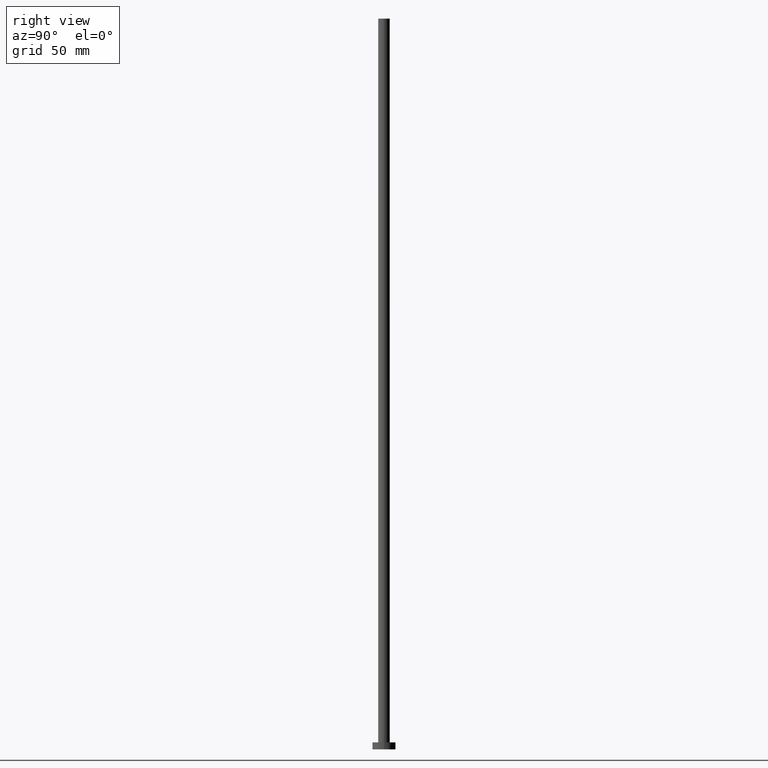
[diagram: clean part render]
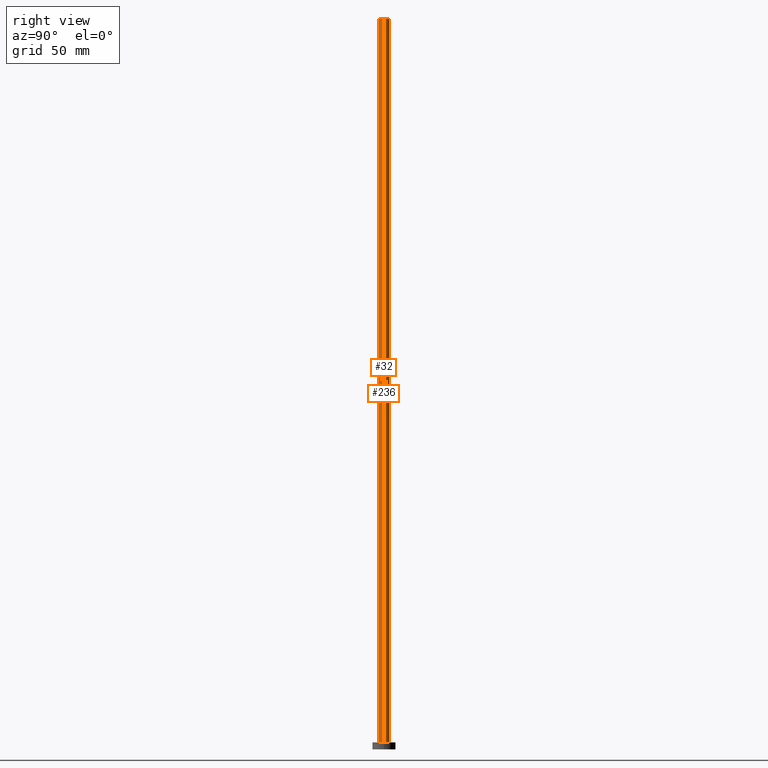
[diagram: same view with one multi-face feature highlighted, each face labeled with its STEP entity id]
A machine part, right view. The highlighted faces form ONE feature: a constant-radius fillet chain: 2 tangent blend faces with common blend radius 2.5 mm. The faces share edges in the B-rep.
Their STEP definitions:
[1] entity #32 (Cylinder):
#4 = AXIS2_PLACEMENT_3D ( 'NONE', #159, #116, #31 ) ;
#10 = EDGE_CURVE ( 'NONE', #72, #244, #45, .T. ) ;
#18 = CYLINDRICAL_SURFACE ( 'NONE', #149, 2.500000000000000000 ) ;
#19 = AXIS2_PLACEMENT_3D ( 'NONE', #254, #78, #195 ) ;
#22 = EDGE_CURVE ( 'NONE', #29, #244, #193, .T. ) ;
#28 = ORIENTED_EDGE ( 'NONE', *, *, #22, .F. ) ;
#29 = VERTEX_POINT ( 'NONE', #61 ) ;
#31 = DIRECTION ( 'NONE',  ( 1.000000000000000000, 0.000000000000000000, 0.000000000000000000 ) ) ;
#32 = ADVANCED_FACE ( 'NONE', ( #190 ), #18, .T. ) ;
#39 = DIRECTION ( 'NONE',  ( -0.000000000000000000, -0.000000000000000000, -1.000000000000000000 ) ) ;
#40 = CARTESIAN_POINT ( 'NONE',  ( -2.500000000000000000, 0.000000000000000000, 315.0000000000000000 ) ) ;
#44 = ORIENTED_EDGE ( 'NONE', *, *, #10, .T. ) ;
#45 = CIRCLE ( 'NONE', #4, 2.500000000000000000 ) ;
#61 = CARTESIAN_POINT ( 'NONE',  ( 2.500000000000000000, 3.061616997868383141E-16, 315.0000000000000000 ) ) ;
#72 = VERTEX_POINT ( 'NONE', #114 ) ;
#78 = DIRECTION ( 'NONE',  ( 0.000000000000000000, 0.000000000000000000, 1.000000000000000000 ) ) ;
#95 = CARTESIAN_POINT ( 'NONE',  ( 0.000000000000000000, 0.000000000000000000, 315.0000000000000000 ) ) ;
#111 = DIRECTION ( 'NONE',  ( -0.000000000000000000, -0.000000000000000000, -1.000000000000000000 ) ) ;
#114 = CARTESIAN_POINT ( 'NONE',  ( -2.500000000000000000, 0.000000000000000000, 3.000000000000000000 ) ) ;
#116 = DIRECTION ( 'NONE',  ( 0.000000000000000000, 0.000000000000000000, 1.000000000000000000 ) ) ;
#118 = LINE ( 'NONE', #40, #152 ) ;
#127 = EDGE_CURVE ( 'NONE', #146, #29, #196, .T. ) ;
#129 = EDGE_LOOP ( 'NONE', ( #28, #212, #186, #44 ) ) ;
#146 = VERTEX_POINT ( 'NONE', #181 ) ;
#148 = CARTESIAN_POINT ( 'NONE',  ( 2.500000000000000000, 3.061616997868383141E-16, 3.000000000000000000 ) ) ;
#149 = AXIS2_PLACEMENT_3D ( 'NONE', #95, #111, #237 ) ;
#152 = VECTOR ( 'NONE', #39, 1000.000000000000000 ) ;
#159 = CARTESIAN_POINT ( 'NONE',  ( 0.000000000000000000, 0.000000000000000000, 3.000000000000000000 ) ) ;
#164 = EDGE_CURVE ( 'NONE', #146, #72, #118, .T. ) ;
#175 = DIRECTION ( 'NONE',  ( -0.000000000000000000, -0.000000000000000000, -1.000000000000000000 ) ) ;
#181 = CARTESIAN_POINT ( 'NONE',  ( -2.500000000000000000, 0.000000000000000000, 315.0000000000000000 ) ) ;
#186 = ORIENTED_EDGE ( 'NONE', *, *, #164, .T. ) ;
#190 = FACE_OUTER_BOUND ( 'NONE', #129, .T. ) ;
#193 = LINE ( 'NONE', #213, #210 ) ;
#195 = DIRECTION ( 'NONE',  ( 1.000000000000000000, 0.000000000000000000, 0.000000000000000000 ) ) ;
#196 = CIRCLE ( 'NONE', #19, 2.500000000000000000 ) ;
#210 = VECTOR ( 'NONE', #175, 1000.000000000000000 ) ;
#212 = ORIENTED_EDGE ( 'NONE', *, *, #127, .F. ) ;
#213 = CARTESIAN_POINT ( 'NONE',  ( 2.500000000000000000, 3.061616997868383141E-16, 315.0000000000000000 ) ) ;
#237 = DIRECTION ( 'NONE',  ( -1.000000000000000000, 0.000000000000000000, 0.000000000000000000 ) ) ;
#244 = VERTEX_POINT ( 'NONE', #148 ) ;
#254 = CARTESIAN_POINT ( 'NONE',  ( 0.000000000000000000, 0.000000000000000000, 315.0000000000000000 ) ) ;
[2] entity #236 (Cylinder):
#17 = DIRECTION ( 'NONE',  ( 0.000000000000000000, 0.000000000000000000, 1.000000000000000000 ) ) ;
#22 = EDGE_CURVE ( 'NONE', #29, #244, #193, .T. ) ;
#26 = ORIENTED_EDGE ( 'NONE', *, *, #164, .F. ) ;
#29 = VERTEX_POINT ( 'NONE', #61 ) ;
#39 = DIRECTION ( 'NONE',  ( -0.000000000000000000, -0.000000000000000000, -1.000000000000000000 ) ) ;
#40 = CARTESIAN_POINT ( 'NONE',  ( -2.500000000000000000, 0.000000000000000000, 315.0000000000000000 ) ) ;
#49 = DIRECTION ( 'NONE',  ( -1.000000000000000000, 0.000000000000000000, 0.000000000000000000 ) ) ;
#55 = DIRECTION ( 'NONE',  ( 1.000000000000000000, 0.000000000000000000, 0.000000000000000000 ) ) ;
#61 = CARTESIAN_POINT ( 'NONE',  ( 2.500000000000000000, 3.061616997868383141E-16, 315.0000000000000000 ) ) ;
#63 = CIRCLE ( 'NONE', #189, 2.500000000000000000 ) ;
#66 = EDGE_CURVE ( 'NONE', #29, #146, #161, .T. ) ;
#70 = DIRECTION ( 'NONE',  ( -0.000000000000000000, -0.000000000000000000, -1.000000000000000000 ) ) ;
#72 = VERTEX_POINT ( 'NONE', #114 ) ;
#74 = DIRECTION ( 'NONE',  ( 0.000000000000000000, 0.000000000000000000, 1.000000000000000000 ) ) ;
#108 = EDGE_CURVE ( 'NONE', #244, #72, #63, .T. ) ;
#114 = CARTESIAN_POINT ( 'NONE',  ( -2.500000000000000000, 0.000000000000000000, 3.000000000000000000 ) ) ;
#118 = LINE ( 'NONE', #40, #152 ) ;
#130 = AXIS2_PLACEMENT_3D ( 'NONE', #137, #17, #55 ) ;
#137 = CARTESIAN_POINT ( 'NONE',  ( 0.000000000000000000, 0.000000000000000000, 315.0000000000000000 ) ) ;
#140 = FACE_OUTER_BOUND ( 'NONE', #185, .T. ) ;
#146 = VERTEX_POINT ( 'NONE', #181 ) ;
#147 = CYLINDRICAL_SURFACE ( 'NONE', #163, 2.500000000000000000 ) ;
#148 = CARTESIAN_POINT ( 'NONE',  ( 2.500000000000000000, 3.061616997868383141E-16, 3.000000000000000000 ) ) ;
#152 = VECTOR ( 'NONE', #39, 1000.000000000000000 ) ;
#161 = CIRCLE ( 'NONE', #130, 2.500000000000000000 ) ;
#163 = AXIS2_PLACEMENT_3D ( 'NONE', #247, #70, #49 ) ;
#164 = EDGE_CURVE ( 'NONE', #146, #72, #118, .T. ) ;
#175 = DIRECTION ( 'NONE',  ( -0.000000000000000000, -0.000000000000000000, -1.000000000000000000 ) ) ;
#177 = CARTESIAN_POINT ( 'NONE',  ( 0.000000000000000000, 0.000000000000000000, 3.000000000000000000 ) ) ;
#181 = CARTESIAN_POINT ( 'NONE',  ( -2.500000000000000000, 0.000000000000000000, 315.0000000000000000 ) ) ;
#185 = EDGE_LOOP ( 'NONE', ( #248, #226, #205, #26 ) ) ;
#189 = AXIS2_PLACEMENT_3D ( 'NONE', #177, #74, #231 ) ;
#193 = LINE ( 'NONE', #213, #210 ) ;
#205 = ORIENTED_EDGE ( 'NONE', *, *, #108, .T. ) ;
#210 = VECTOR ( 'NONE', #175, 1000.000000000000000 ) ;
#213 = CARTESIAN_POINT ( 'NONE',  ( 2.500000000000000000, 3.061616997868383141E-16, 315.0000000000000000 ) ) ;
#226 = ORIENTED_EDGE ( 'NONE', *, *, #22, .T. ) ;
#231 = DIRECTION ( 'NONE',  ( 1.000000000000000000, 0.000000000000000000, 0.000000000000000000 ) ) ;
#236 = ADVANCED_FACE ( 'NONE', ( #140 ), #147, .T. ) ;
#244 = VERTEX_POINT ( 'NONE', #148 ) ;
#247 = CARTESIAN_POINT ( 'NONE',  ( 0.000000000000000000, 0.000000000000000000, 315.0000000000000000 ) ) ;
#248 = ORIENTED_EDGE ( 'NONE', *, *, #66, .F. ) ;